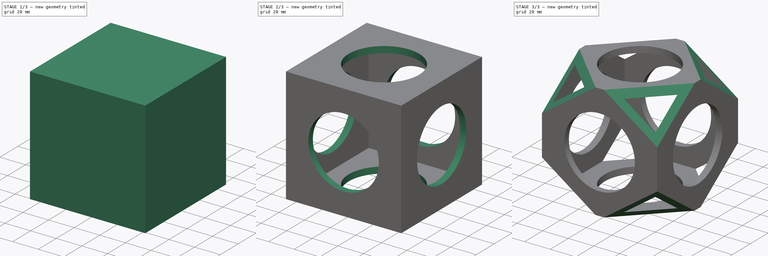
[diagram: build sequence overview — one tinted view per stage of 3, left to right]
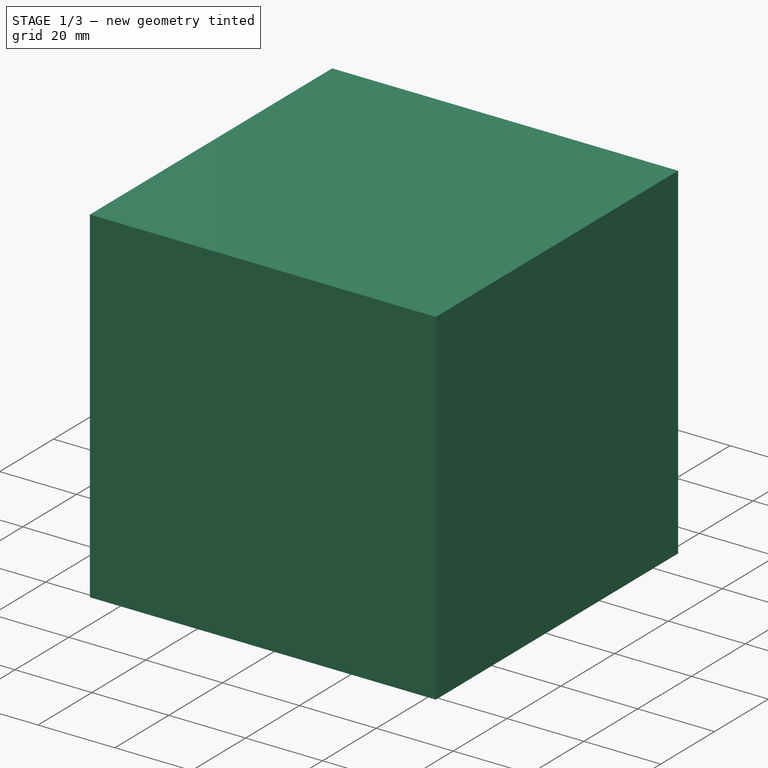
[diagram: stage 1 of 3 — iso view after this stage's code; geometry added in this stage tinted green]
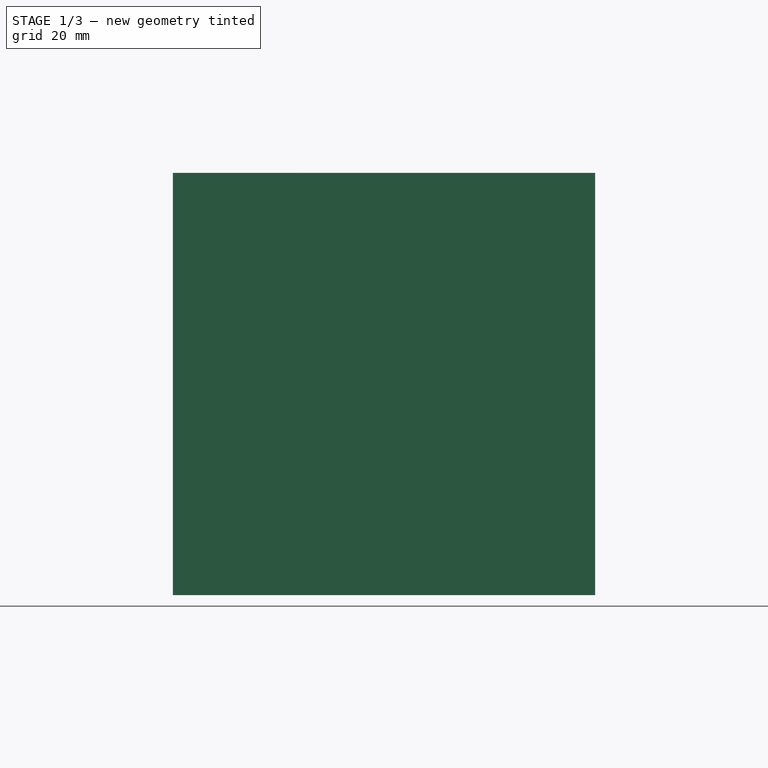
[diagram: stage 1 of 3 — front view after this stage's code; geometry added in this stage tinted green]
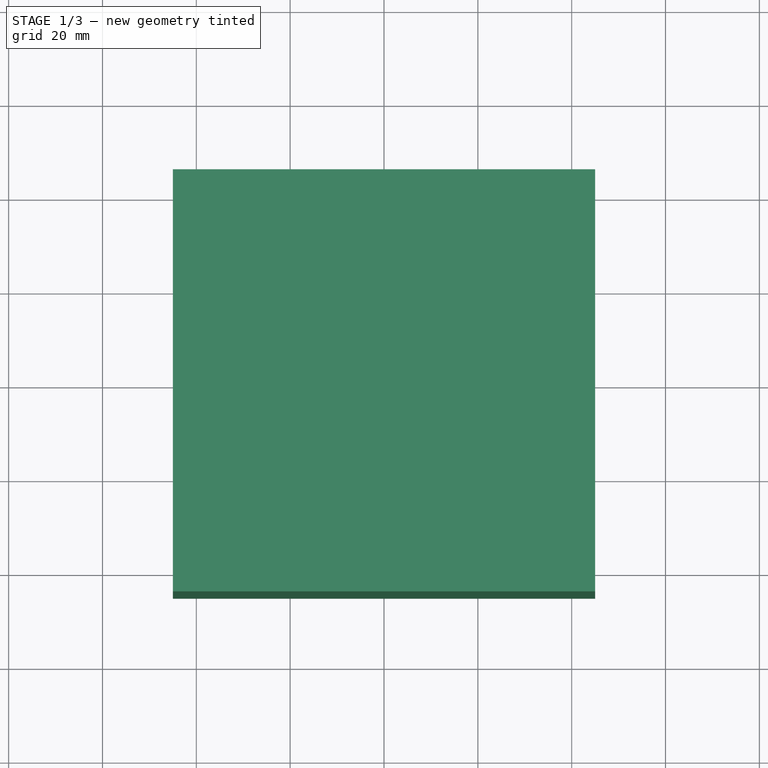
[diagram: stage 1 of 3 — top view after this stage's code; geometry added in this stage tinted green]
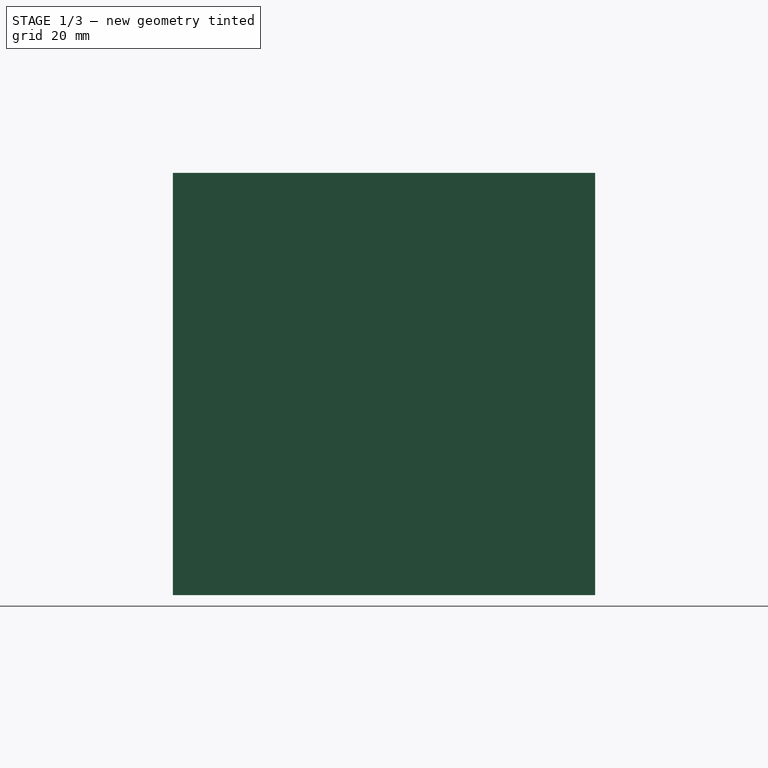
[diagram: stage 1 of 3 — right view after this stage's code; geometry added in this stage tinted green]
FCSTD DOCUMENT  (FreeCAD 0.19R23578 (Git))
Label: freecad-challenge
License: All rights reserved
LicenseURL: http://en.wikipedia.org/wiki/All_rights_reserved
objects: Sketcher::SketchObject×4, PartDesign::Pocket×3, PartDesign::PolarPattern×2, PartDesign::Pad×1, PartDesign::MultiTransform×1, PartDesign::Plane×1, PartDesign::Mirrored×1, PartDesign::Body×1
note: 18 computed .brp shape members not serialized (recipe doc carries the construction recipe); baked Part::Feature solids carry a one-line shape summary decoded from their .brp

FEATURE [Sketcher::SketchObject] Sketch  label="sk_aussenmass"
  MapMode = 5
  Support = -> [XY_Plane]
  sketch-geometry (4):
    g0: LineSegment StartX=-45 StartY=45 StartZ=0 EndX=45 EndY=45 EndZ=0
    g1: LineSegment StartX=45 StartY=45 StartZ=0 EndX=45 EndY=-45 EndZ=0
    g2: LineSegment StartX=45 StartY=-45 StartZ=0 EndX=-45 EndY=-45 EndZ=0
    g3: LineSegment StartX=-45 StartY=-45 StartZ=0 EndX=-45 EndY=45 EndZ=0
  constraints (11):
    c: Coincident(g0,g1)
    c: Coincident(g1,g2)
    c: Coincident(g2,g3)
    c: Coincident(g3,g0)
    c: Horizontal(g0)
    c: Horizontal(g2)
    c: Vertical(g1)
    c: Vertical(g3)
    c: Equal(g3,g2)
    c: Symmetric(g0,g2,g-1)
    c: DistanceX(g0,g0) = 90  'aussenmass'
FEATURE [PartDesign::Pad] Pad  label="aussenkoerper"
  Direction = (1,1,1)
  Length = 90
  Length2 = 100
  Midplane = true
  Profile = -> Sketch
  Refine = true
  Type = 0
  expr: Length = <<sk_aussenmass>>.Constraints.aussenmass
FEATURE [Sketcher::SketchObject] Sketch001  label="sk_innenmass"
  MapMode = 5
  Support = -> [XY_Plane]
  sketch-geometry (4):
    g0: LineSegment StartX=-40 StartY=40 StartZ=0 EndX=40 EndY=40 EndZ=0
    g1: LineSegment StartX=40 StartY=40 StartZ=0 EndX=40 EndY=-40 EndZ=0
    g2: LineSegment StartX=40 StartY=-40 StartZ=0 EndX=-40 EndY=-40 EndZ=0
    g3: LineSegment StartX=-40 StartY=-40 StartZ=0 EndX=-40 EndY=40 EndZ=0
  constraints (11):
    c: Coincident(g0,g1)
    c: Coincident(g1,g2)
    c: Coincident(g2,g3)
    c: Coincident(g3,g0)
    c: Horizontal(g0)
    c: Horizontal(g2)
    c: Vertical(g1)
    c: Vertical(g3)
    c: Symmetric(g0,g1,g-1)
    c: Equal(g3,g0)
    c: DistanceX(g0,g0) = 80  'innenmass'
FEATURE [PartDesign::Pocket] Pocket  label="aushoehlung_innen"
  BaseFeature = -> Pad
  Length = 80
  Length2 = 100
  Midplane = true
  Profile = -> Sketch001
  Refine = true
  Type = 0
  expr: Length = <<sk_innenmass>>.Constraints.innenmass
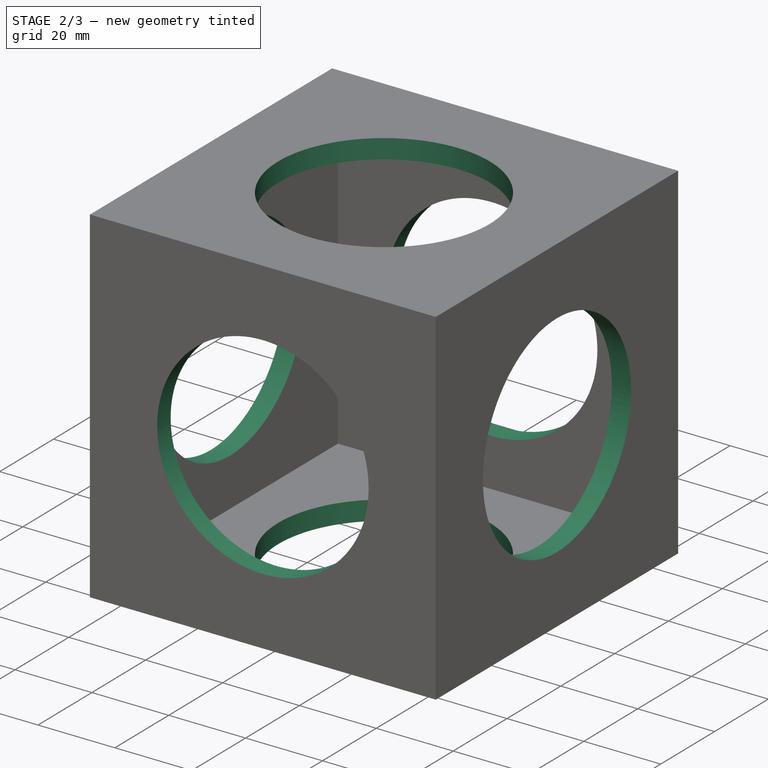
[diagram: stage 2 of 3 — iso view after this stage's code; geometry added in this stage tinted green]
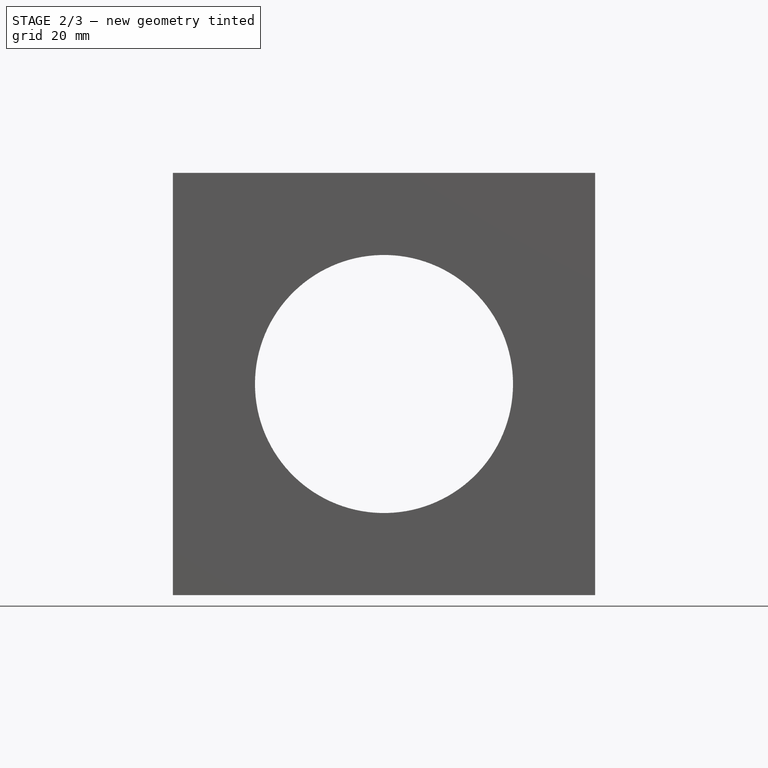
[diagram: stage 2 of 3 — front view after this stage's code; geometry added in this stage tinted green]
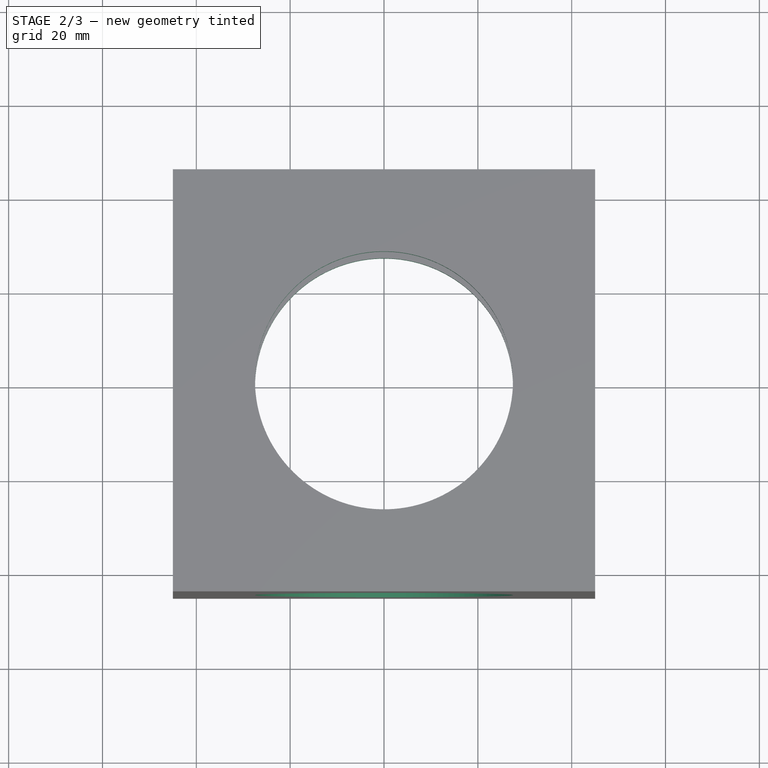
[diagram: stage 2 of 3 — top view after this stage's code; geometry added in this stage tinted green]
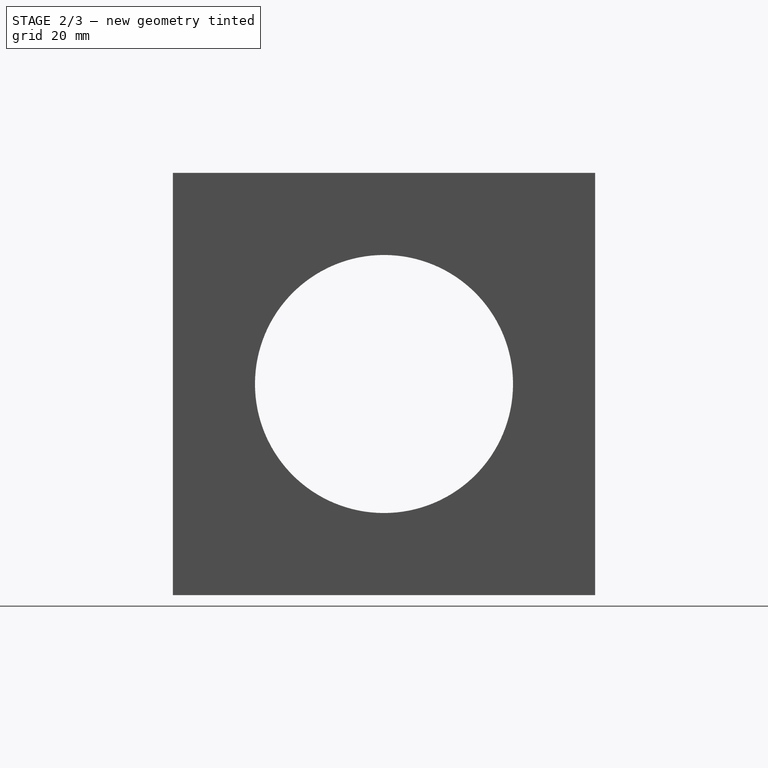
[diagram: stage 2 of 3 — right view after this stage's code; geometry added in this stage tinted green]
FEATURE [Sketcher::SketchObject] Sketch002  label="sk_loch"
  MapMode = 5
  Support = -> [XY_Plane]
  sketch-geometry (1):
    g0: Circle CenterX=0 CenterY=0 CenterZ=0 NormalX=0 NormalY=0 NormalZ=1 AngleXU=0 Radius=27.5
  constraints (2):
    c: Coincident(g0,g-1)
    c: Diameter(g0) = 55  'loch'
FEATURE [PartDesign::Pocket] Pocket001  label="1_loch"
  BaseFeature = -> Pocket
  Length = 5
  Length2 = 100
  Midplane = true
  Profile = -> Sketch002
  Refine = true
  Type = 1
FEATURE [PartDesign::PolarPattern] PolarPattern
  Angle = 360
  Axis = -> Sketch002 [V_Axis]
  Occurrences = 4
  Refine = true
FEATURE [PartDesign::PolarPattern] PolarPattern001
  Angle = 360
  Axis = -> Sketch002 [H_Axis]
  Occurrences = 4
  Refine = true
FEATURE [PartDesign::MultiTransform] MultiTransform  label="6_loch"
  BaseFeature = -> Pocket001
  Originals = -> [Pocket001]
  Refine = true
  Transformations = -> [PolarPattern,PolarPattern001]
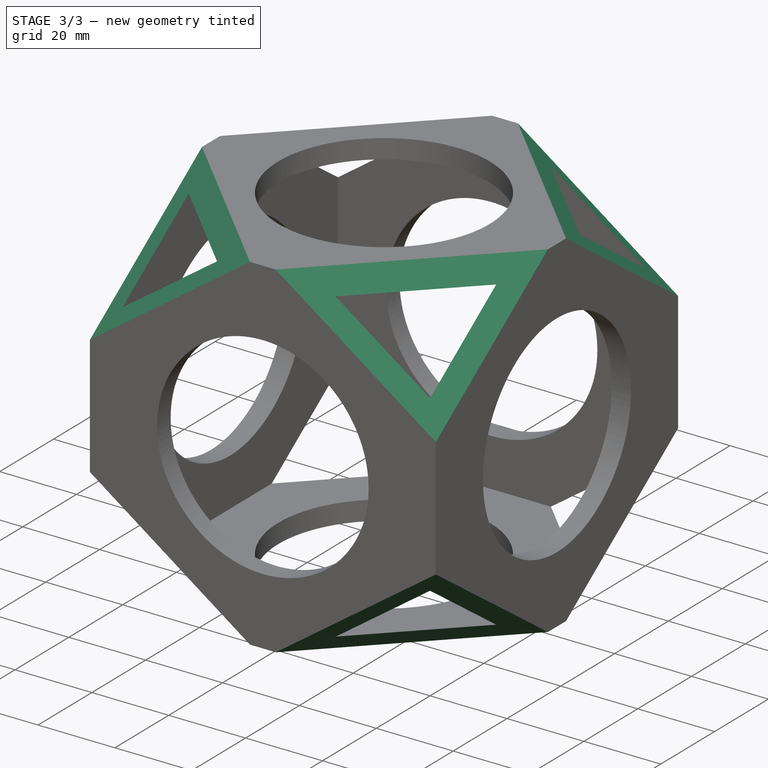
[diagram: stage 3 of 3 — iso view after this stage's code; geometry added in this stage tinted green]
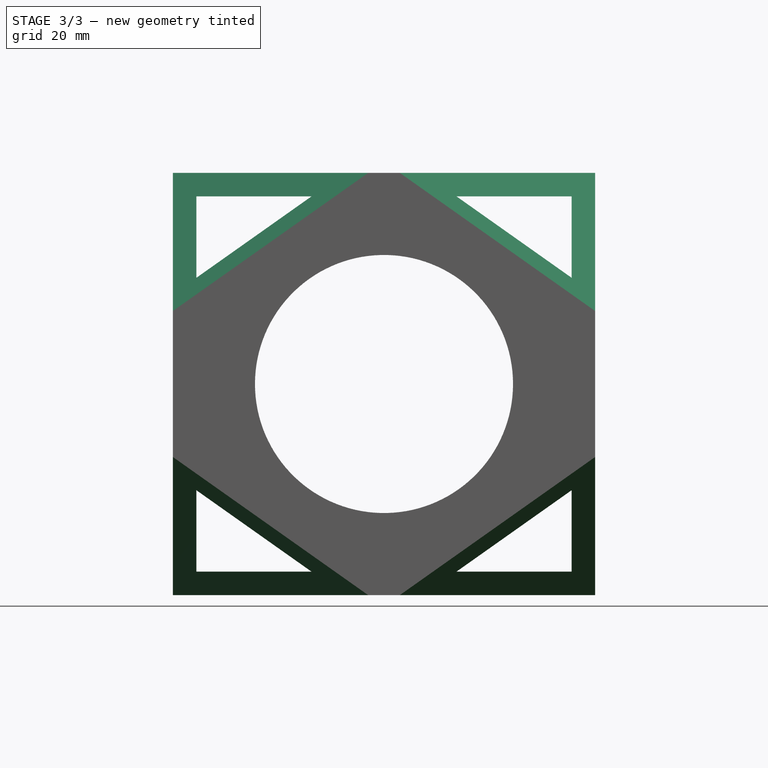
[diagram: stage 3 of 3 — front view after this stage's code; geometry added in this stage tinted green]
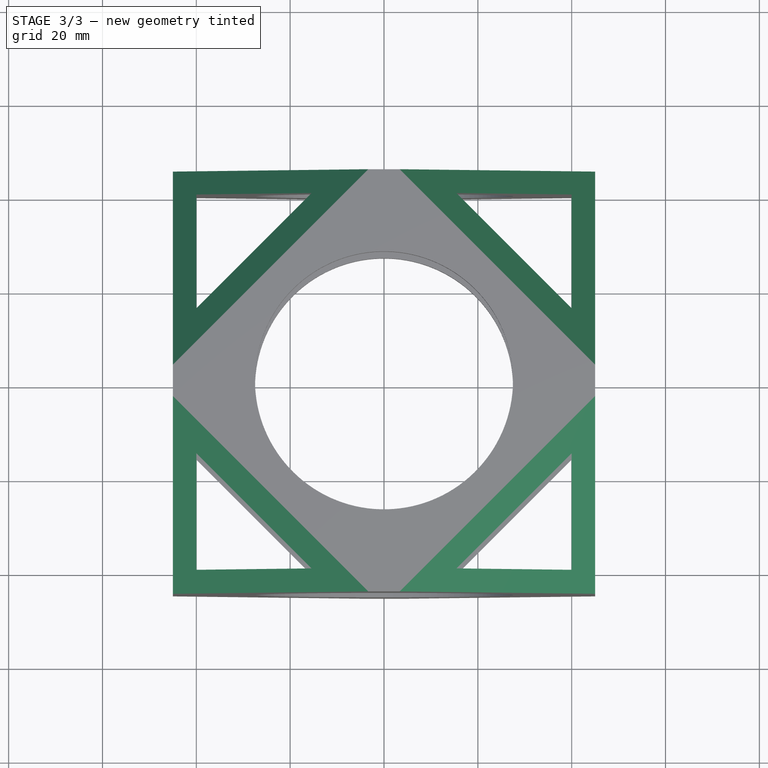
[diagram: stage 3 of 3 — top view after this stage's code; geometry added in this stage tinted green]
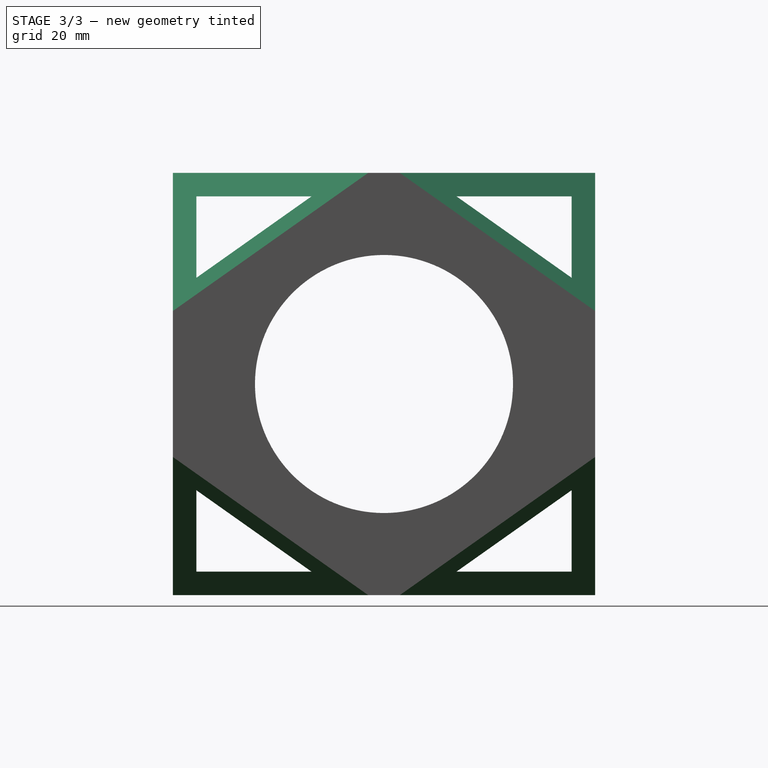
[diagram: stage 3 of 3 — right view after this stage's code; geometry added in this stage tinted green]
FEATURE [PartDesign::Plane] DatumPlane
  AttachmentOffset = pos=(0,0,0) rot=(1,0,0;0.785398rad)
  Length = 111.406
  MapMode = 2
  Placement = pos=(0,0,0) rot=(0.357407,0.862856,0.357407;4.56541rad)
  ResizeMode = 0
  Support = -> [Z_Axis]
  Width = 148.685
FEATURE [Sketcher::SketchObject] Sketch003  label="sk_dreieck"
  ExternalGeometry = -> [MultiTransform]
  MapMode = 5
  Placement = pos=(0,0,0) rot=(-0.357407,-0.862856,-0.357407;1.71777rad)
  Support = -> [DatumPlane]
  sketch-geometry (12):
    g0: LineSegment StartX=-45 StartY=63.6396 StartZ=0 EndX=-45 EndY=34.196 EndZ=0
    g1: LineSegment StartX=-45 StartY=34.196 StartZ=0 EndX=-15.5563 EndY=63.6396 EndZ=0
    g2: LineSegment StartX=-15.5563 StartY=63.6396 StartZ=0 EndX=-45 EndY=63.6396 EndZ=0
    g3: LineSegment StartX=15.5563 StartY=63.6396 StartZ=0 EndX=45 EndY=63.6396 EndZ=0
    g4: LineSegment StartX=45 StartY=63.6396 StartZ=0 EndX=45 EndY=34.196 EndZ=0
    g5: LineSegment StartX=45 StartY=34.196 StartZ=0 EndX=15.5563 EndY=63.6396 EndZ=0
    g6: LineSegment StartX=45 StartY=-34.196 StartZ=0 EndX=45 EndY=-63.6396 EndZ=0
    g7: LineSegment StartX=45 StartY=-63.6396 StartZ=0 EndX=15.5563 EndY=-63.6396 EndZ=0
    g8: LineSegment StartX=15.5563 StartY=-63.6396 StartZ=0 EndX=45 EndY=-34.196 EndZ=0
    g9: LineSegment StartX=-45 StartY=-63.6396 StartZ=0 EndX=-45 EndY=-34.196 EndZ=0
    g10: LineSegment StartX=-45 StartY=-34.196 StartZ=0 EndX=-15.5563 EndY=-63.6396 EndZ=0
    g11: LineSegment StartX=-15.5563 StartY=-63.6396 StartZ=0 EndX=-45 EndY=-63.6396 EndZ=0
  constraints (32):
    c: Coincident(g-3,g0)
    c: Vertical(g0)
    c: Coincident(g0,g1)
    c: PointOnObject(g1,g-3)
    c: Coincident(g1,g2)
    c: Coincident(g2,g0)
    c: PointOnObject(g3,g-3)
    c: Coincident(g3,g-3)
    c: Coincident(g3,g4)
    c: Vertical(g4)
    c: Coincident(g4,g5)
    c: Coincident(g5,g3)
    c: Coincident(g6,g-4)
    c: Vertical(g6)
    c: Coincident(g6,g7)
    c: PointOnObject(g7,g-4)
    c: Coincident(g7,g8)
    c: Coincident(g8,g6)
    c: Coincident(g-4,g9)
    c: Vertical(g9)
    c: Coincident(g9,g10)
    c: PointOnObject(g10,g-4)
    c: Coincident(g10,g11)
    c: Coincident(g11,g9)
    c: Equal(g0,g2)
    c: Equal(g2,g3)
    c: Equal(g3,g4)
    c: Equal(g4,g6)
    c: Equal(g6,g7)
    c: Equal(g7,g11)
    c: Equal(g11,g9)
    c: Distance(g-1,g1) = 56
FEATURE [PartDesign::Pocket] Pocket002  label="4_dreieck"
  BaseFeature = -> MultiTransform
  Length = 5
  Length2 = 100
  Midplane = true
  Profile = -> Sketch003
  Refine = true
  Type = 1
FEATURE [PartDesign::Mirrored] Mirrored  label="6_dreieck"
  BaseFeature = -> Pocket002
  MirrorPlane = -> YZ_Plane
  Originals = -> [Pocket002]
  Refine = true
FEATURE [PartDesign::Body] Body
  Group = -> [Sketch,Pad,Sketch001,Pocket,Sketch002,Pocket001,MultiTransform,PolarPattern,PolarPattern001,DatumPlane,Sketch003,Pocket002,Mirrored]
  Origin = -> Origin
  Tip = -> Mirrored
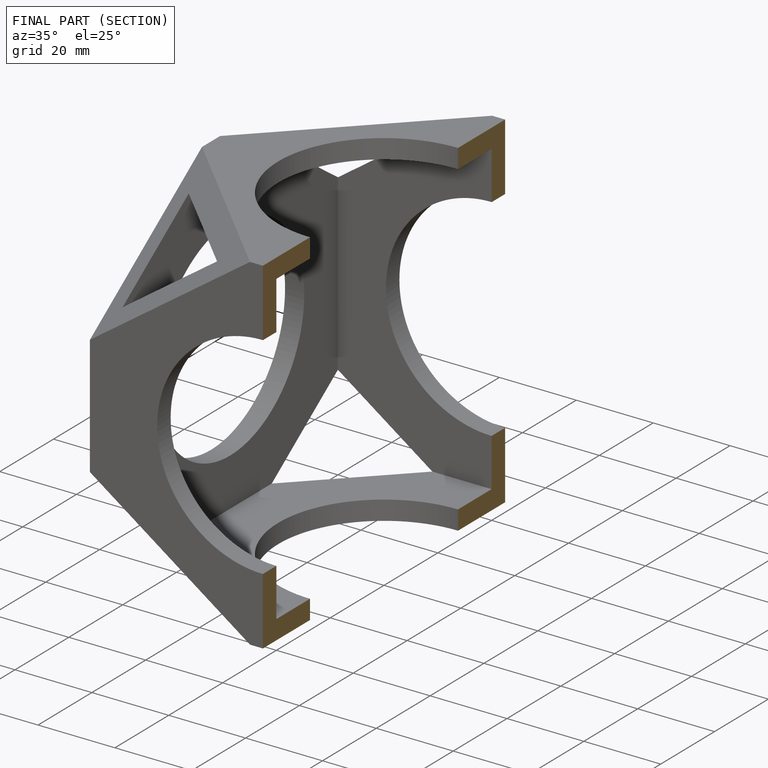
[diagram: finished part — half-section view (interior)]
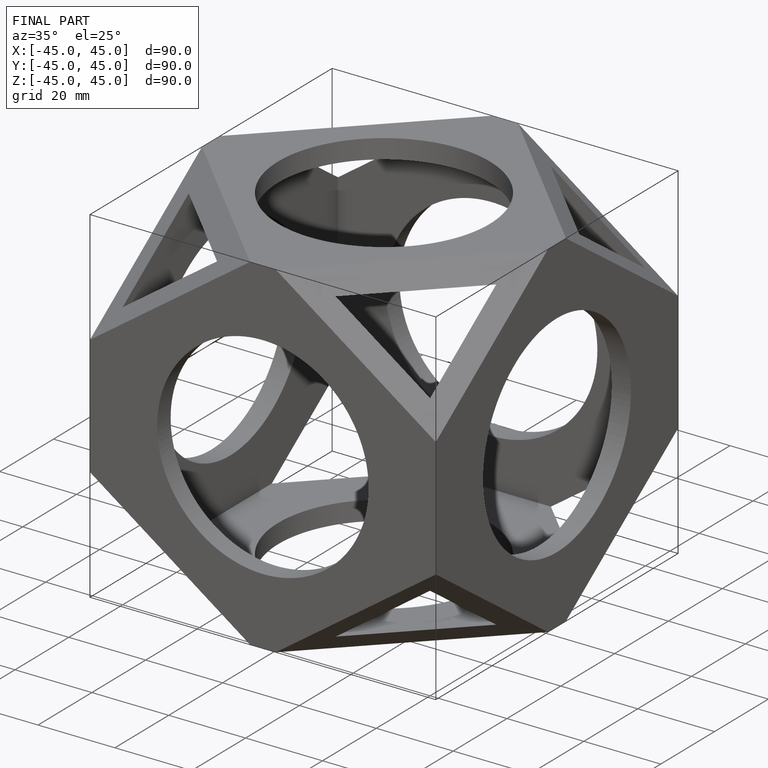
[diagram: finished part — iso view with bounding-box wireframe]
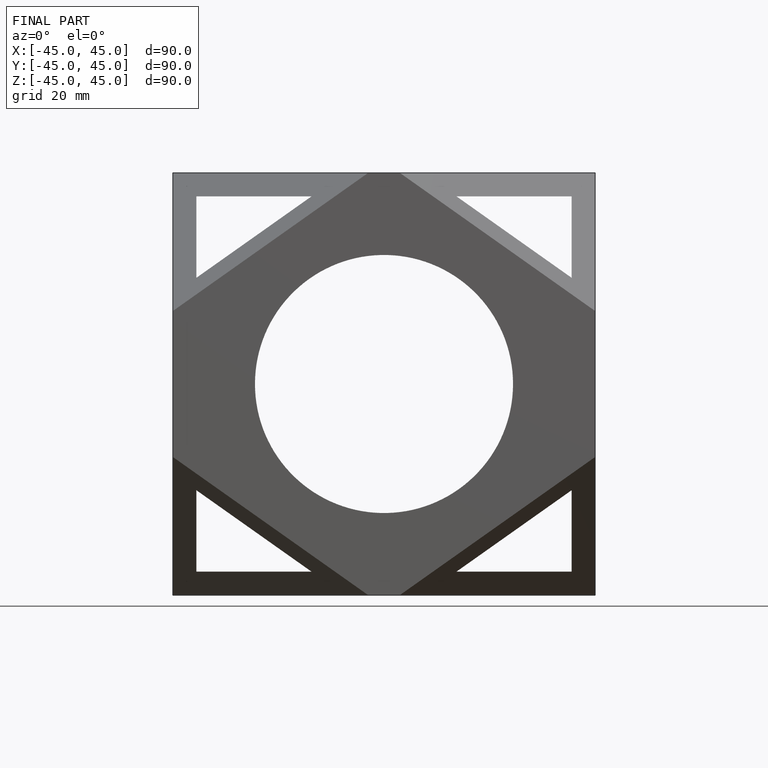
[diagram: finished part — front view with bounding-box wireframe]
